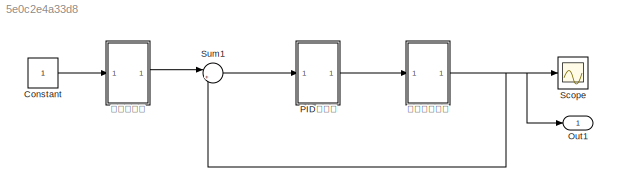
MODEL slx_5e0c2e4a33d8
KIND model
CONFIG AbsTol = auto
CONFIG EnableMultiTasking = off
CONFIG FixedStep = auto
CONFIG MaxStep = auto
CONFIG MinStep = auto
CONFIG RelTol = 1e-3
CONFIG SampleTimeConstraint = Unconstrained
CONFIG Solver = VariableStepAuto
CONFIG SolverName = VariableStepAuto
CONFIG StartTime = 0.0
CONFIG StopTime = 1000
BLOCK [Constant] Constant
BLOCK [Outport] Out1
  IconDisplay = Port number
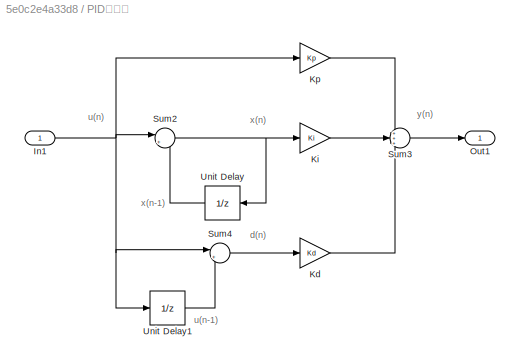
BLOCK [SubSystem] PID控制器
  Ports = [1, 1]
  RequestExecContextInheritance = off
BLOCK [Inport] PID控制器/In1
  IconDisplay = Port number
BLOCK [Gain] PID控制器/Kd
  Gain = Kd
  OutDataTypeStr = Inherit: Inherit via internal rule
  ParamDataTypeStr = Inherit: Inherit via internal rule
  SaturateOnIntegerOverflow = off
BLOCK [Gain] PID控制器/Ki
  Gain = Ki
  OutDataTypeStr = Inherit: Inherit via internal rule
  ParamDataTypeStr = Inherit: Inherit via internal rule
  SaturateOnIntegerOverflow = off
BLOCK [Gain] PID控制器/Kp
  Gain = Kp
  OutDataTypeStr = Inherit: Inherit via internal rule
  ParamDataTypeStr = Inherit: Inherit via internal rule
  SaturateOnIntegerOverflow = off
BLOCK [Outport] PID控制器/Out1
  IconDisplay = Port number
BLOCK [Sum] PID控制器/Sum2
  IconShape = round
  InputSameDT = off
  Inputs = |++
  OutDataTypeStr = Inherit: Inherit via internal rule
  Ports = [2, 1]
  SaturateOnIntegerOverflow = off
BLOCK [Sum] PID控制器/Sum3
  IconShape = round
  InputSameDT = off
  Inputs = +++
  OutDataTypeStr = Inherit: Inherit via internal rule
  Ports = [3, 1]
  SaturateOnIntegerOverflow = off
BLOCK [Sum] PID控制器/Sum4
  IconShape = round
  InputSameDT = off
  Inputs = |+-
  OutDataTypeStr = Inherit: Inherit via internal rule
  Ports = [2, 1]
  SaturateOnIntegerOverflow = off
BLOCK [UnitDelay] PID控制器/Unit Delay
  InputProcessing = Elements as channels (sample based)
  SampleTime = 0.02
BLOCK [UnitDelay] PID控制器/Unit Delay1
  InputProcessing = Elements as channels (sample based)
  SampleTime = 0.02
BLOCK [Scope] Scope
  Floating = off
  NumInputPorts = 1
  Ports = [1]
  ScopeSpecificationString = Simulink.scopes.TimeScopeBlockCfg('CurrentConfiguration', extmgr.ConfigurationSet(extmgr.Configuration('Core','General UI',true),extmgr.Configuration('Core','Source UI',true),extmgr.Configuration('Sources','WiredSimulink',true),extmgr.Configuration('Visuals','Time Domain',true,'SerializedDisplays',{struct('MinYLimReal','-10.18852','MaxYLimReal','91.6967','YLabelReal','','MinYLimMag','0.00000','Max...<+1358ch>
BLOCK [Sum] Sum1
  IconShape = round
  InputSameDT = off
  Inputs = |+-
  OutDataTypeStr = Inherit: Inherit via internal rule
  Ports = [2, 1]
  SaturateOnIntegerOverflow = off
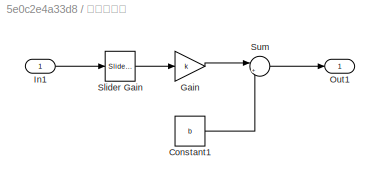
BLOCK [SubSystem] 位置变换器
  Ports = [1, 1]
  RequestExecContextInheritance = off
BLOCK [Constant] 位置变换器/Constant1
  Value = b
BLOCK [Gain] 位置变换器/Gain
  Gain = k
  OutDataTypeStr = Inherit: Inherit via internal rule
  ParamDataTypeStr = Inherit: Inherit via internal rule
  SaturateOnIntegerOverflow = off
BLOCK [Inport] 位置变换器/In1
  IconDisplay = Port number
BLOCK [Outport] 位置变换器/Out1
  IconDisplay = Port number
BLOCK [Reference] 位置变换器/Slider Gain  REF=simulink/Math
Operations/Slider
Gain
  Ports = [1, 1]
  SourceBlock = simulink/Math\nOperations/Slider\nGain
  SourceProductBaseCode = SL
  SourceProductName = Simulink
  SourceType = Slider Gain
BLOCK [Sum] 位置变换器/Sum
  IconShape = round
  InputSameDT = off
  Inputs = |++
  OutDataTypeStr = Inherit: Inherit via internal rule
  Ports = [2, 1]
  SaturateOnIntegerOverflow = off
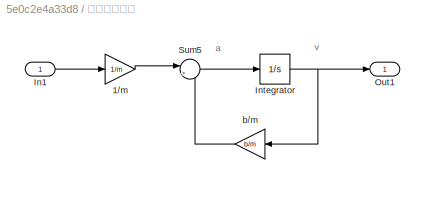
BLOCK [SubSystem] 汽车动力机构
  Ports = [1, 1]
  RequestExecContextInheritance = off
BLOCK [Gain] 汽车动力机构/1//m
  Gain = 1/m
  OutDataTypeStr = Inherit: Inherit via internal rule
  ParamDataTypeStr = Inherit: Inherit via internal rule
  SaturateOnIntegerOverflow = off
BLOCK [Inport] 汽车动力机构/In1
  IconDisplay = Port number
BLOCK [Integrator] 汽车动力机构/Integrator
  Ports = [1, 1]
BLOCK [Outport] 汽车动力机构/Out1
  IconDisplay = Port number
BLOCK [Sum] 汽车动力机构/Sum5
  IconShape = round
  InputSameDT = off
  Inputs = |+-
  OutDataTypeStr = Inherit: Inherit via internal rule
  Ports = [2, 1]
  SaturateOnIntegerOverflow = off
BLOCK [Gain] 汽车动力机构/b//m
  Gain = b/m
  OutDataTypeStr = Inherit: Inherit via internal rule
  ParamDataTypeStr = Inherit: Inherit via internal rule
  SaturateOnIntegerOverflow = off
ANNOTATION PID控制器: d(n)
ANNOTATION PID控制器: u(n)
ANNOTATION PID控制器: u(n-1)
ANNOTATION PID控制器: x(n)
ANNOTATION PID控制器: x(n-1)
ANNOTATION PID控制器: y(n)
ANNOTATION 汽车动力机构: a
ANNOTATION 汽车动力机构: v
LINE Constant:1 -> 位置变换器:1
NET PID控制器/In1:1 -> PID控制器/Kp:1, PID控制器/Sum2:1, PID控制器/Sum4:1, PID控制器/Unit Delay1:1
LINE PID控制器/Kd:1 -> PID控制器/Sum3:3
LINE PID控制器/Ki:1 -> PID控制器/Sum3:2
LINE PID控制器/Kp:1 -> PID控制器/Sum3:1
NET PID控制器/Sum2:1 -> PID控制器/Ki:1, PID控制器/Unit Delay:1
LINE PID控制器/Sum3:1 -> PID控制器/Out1:1
LINE PID控制器/Sum4:1 -> PID控制器/Kd:1
LINE PID控制器/Unit Delay1:1 -> PID控制器/Sum4:2
LINE PID控制器/Unit Delay:1 -> PID控制器/Sum2:2
LINE PID控制器:1 -> 汽车动力机构:1
LINE Sum1:1 -> PID控制器:1
LINE 位置变换器/Constant1:1 -> 位置变换器/Sum:2
LINE 位置变换器/Gain:1 -> 位置变换器/Sum:1
LINE 位置变换器/In1:1 -> 位置变换器/Slider Gain:1
LINE 位置变换器/Slider Gain:1 -> 位置变换器/Gain:1
LINE 位置变换器/Sum:1 -> 位置变换器/Out1:1
LINE 位置变换器:1 -> Sum1:1
LINE 汽车动力机构/1//m:1 -> 汽车动力机构/Sum5:1
LINE 汽车动力机构/In1:1 -> 汽车动力机构/1//m:1
NET 汽车动力机构/Integrator:1 -> 汽车动力机构/Out1:1, 汽车动力机构/b//m:1
LINE 汽车动力机构/Sum5:1 -> 汽车动力机构/Integrator:1
LINE 汽车动力机构/b//m:1 -> 汽车动力机构/Sum5:2
NET 汽车动力机构:1 -> Out1:1, Scope:1, Sum1:2
note: NET lines group one-source signal fan-out (src -> all destinations, sorted); 1:1 wires keep LINE
